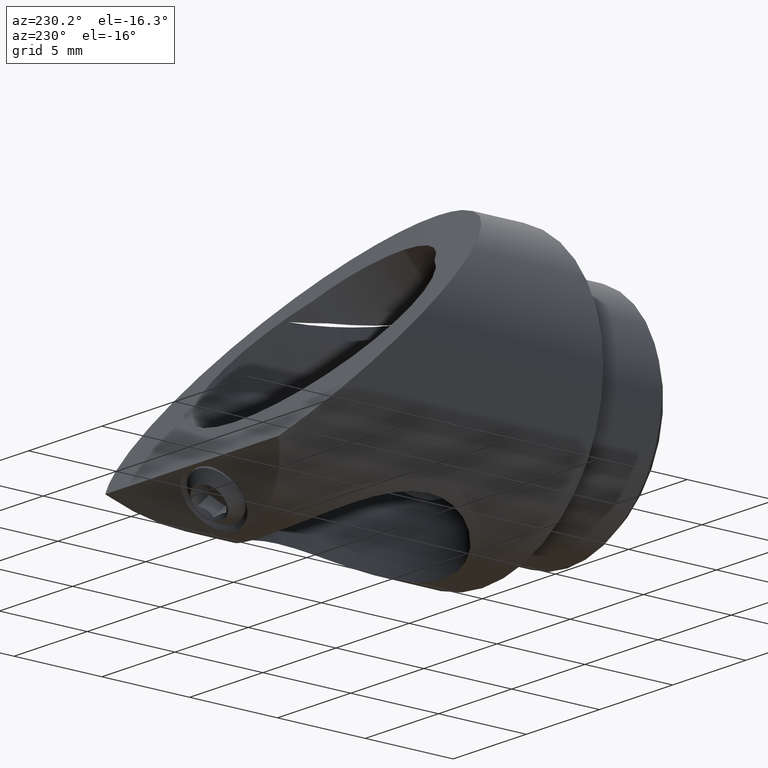
[diagram: clean part render]
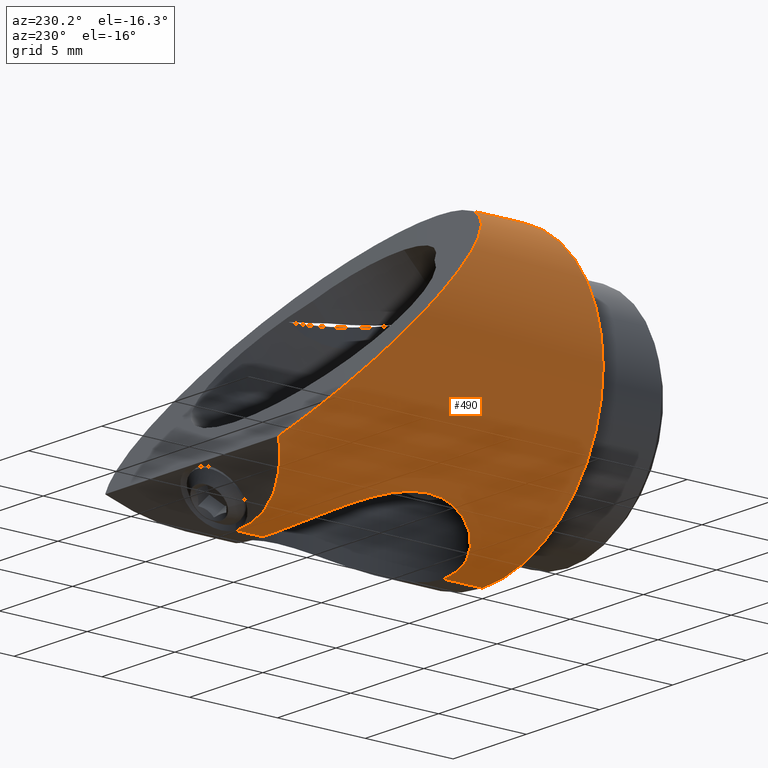
[diagram: same view with one face highlighted and labeled with its STEP entity id]
A machine part, auxiliary view. The second image highlights one B-rep face of the part: STEP entity #490.
In plain terms, the highlighted cylindrical surface (partial cylindrical patch) has radius 8.255 mm, axis along (-0, -1, -0).
Its self-contained STEP definition (entity closure, byte-faithful):
#56 = CARTESIAN_POINT ( 'NONE',  ( -4.607688005399395159, 5.055511432832127561, -6.851265883429170422 ) ) ;
#63 = CARTESIAN_POINT ( 'NONE',  ( 5.688456862632121891E-15, 2.222499999999918874, -8.255000000000050520 ) ) ;
#107 = CARTESIAN_POINT ( 'NONE',  ( -2.613451219519464352, 11.80833277268657788, -7.835806132201303065 ) ) ;
#122 = CARTESIAN_POINT ( 'NONE',  ( 0.000000000000000000, 30.00000000000000000, 0.000000000000000000 ) ) ;
#178 = CARTESIAN_POINT ( 'NONE',  ( -3.413166636286394162, 3.504181741876475353, -7.520768276831066856 ) ) ;
#185 = CARTESIAN_POINT ( 'NONE',  ( -5.107612937613382087, 6.669752681843417186, -6.485738422663894553 ) ) ;
#210 = CARTESIAN_POINT ( 'NONE',  ( -3.411064405648982500, 11.22963272712891758, -7.521712761560991112 ) ) ;
#233 = VERTEX_POINT ( 'NONE', #840 ) ;
#235 = CARTESIAN_POINT ( 'NONE',  ( -4.083941564817017422, 10.50996999270171806, -7.177199685979259058 ) ) ;
#247 = CARTESIAN_POINT ( 'NONE',  ( 0.000000000000000000, 30.00000000000000000, -8.255000000000000782 ) ) ;
#261 = CARTESIAN_POINT ( 'NONE',  ( -5.931774102239412372, 16.53600000000001558, -5.741000000000161307 ) ) ;
#275 = CARTESIAN_POINT ( 'NONE',  ( 5.688456862632121891E-15, 2.222499999999918874, -8.255000000000050520 ) ) ;
#277 = CIRCLE ( 'NONE', #858, 8.255000000000000782 ) ;
#298 = CARTESIAN_POINT ( 'NONE',  ( 0.000000000000000000, 30.00000000000000000, -8.255000000000000782 ) ) ;
#302 = CARTESIAN_POINT ( 'NONE',  ( -2.315092837053867036, 2.760626923448897152, -7.930175362161001829 ) ) ;
#339 = VERTEX_POINT ( 'NONE', #571 ) ;
#343 = CARTESIAN_POINT ( 'NONE',  ( -0.6893307125977805594, 2.257264699664378593, -8.233205143247753099 ) ) ;
#363 = CARTESIAN_POINT ( 'NONE',  ( -5.143500000000001293, 7.710809347538978287, -6.456735456095442416 ) ) ;
#402 =( BOUNDED_CURVE ( )  B_SPLINE_CURVE ( 3, ( #1053, #1581, #802, #534 ),
 .UNSPECIFIED., .F., .F. ) 
 B_SPLINE_CURVE_WITH_KNOTS ( ( 4, 4 ),
 ( 3.943332872215878471, 6.283185307179586232 ),
 .UNSPECIFIED. ) 
 CURVE ( )  GEOMETRIC_REPRESENTATION_ITEM ( )  RATIONAL_B_SPLINE_CURVE ( ( 1.000000000000000000, 0.5934797456959256534, 0.5934797456959256534, 1.000000000000000000 ) ) 
 REPRESENTATION_ITEM ( '' )  );
#433 = VERTEX_POINT ( 'NONE', #1432 ) ;
#434 = CARTESIAN_POINT ( 'NONE',  ( -1.364165436341900906, 2.403756321948335994, -8.143197344316554620 ) ) ;
#463 = VERTEX_POINT ( 'NONE', #908 ) ;
#479 = CARTESIAN_POINT ( 'NONE',  ( -5.143500000000003070, 7.020977924376516910, -6.456735456095442416 ) ) ;
#483 = LINE ( 'NONE', #1013, #995 ) ;
#487 = CARTESIAN_POINT ( 'NONE',  ( -4.450140269535491910, 9.965880305188587585, -6.956078321778690565 ) ) ;
#490 = ADVANCED_FACE ( 'NONE', ( #1299 ), #777, .T. ) ;
#502 = EDGE_CURVE ( 'NONE', #805, #1475, #1225, .T. ) ;
#516 = CARTESIAN_POINT ( 'NONE',  ( -4.354934205719423801, 14.90676152907947838, -7.370238470920710050 ) ) ;
#524 = EDGE_CURVE ( 'NONE', #879, #433, #1448, .T. ) ;
#526 = VECTOR ( 'NONE', #893, 1000.000000000000000 ) ;
#534 = CARTESIAN_POINT ( 'NONE',  ( 1.010945932696140139E-15, 2.540000000000000480, 8.255000000000000782 ) ) ;
#537 = CARTESIAN_POINT ( 'NONE',  ( 1.010945932696140139E-15, 2.540000000000000480, 8.255000000000000782 ) ) ;
#565 = CARTESIAN_POINT ( 'NONE',  ( -4.869752913553363705, 5.676428239152469857, -6.667543739750078302 ) ) ;
#571 = CARTESIAN_POINT ( 'NONE',  ( 1.010945932696140139E-15, 0.000000000000000000, 8.255000000000000782 ) ) ;
#573 = CARTESIAN_POINT ( 'NONE',  ( -1.849665492352053242, 2.563634878676754436, -8.046697480712376560 ) ) ;
#577 = VERTEX_POINT ( 'NONE', #537 ) ;
#611 = CARTESIAN_POINT ( 'NONE',  ( -3.159608716539251017, 11.43801676058217609, -7.631962904562657357 ) ) ;
#612 = ORIENTED_EDGE ( 'NONE', *, *, #1089, .F. ) ;
#690 = DIRECTION ( 'NONE',  ( -0.000000000000000000, -1.000000000000000000, -0.000000000000000000 ) ) ;
#718 = DIRECTION ( 'NONE',  ( 0.000000000000000000, 0.000000000000000000, 1.000000000000000000 ) ) ;
#755 = CARTESIAN_POINT ( 'NONE',  ( -3.873887220869094872, 10.76541407151500174, -7.294142927507111906 ) ) ;
#764 = DIRECTION ( 'NONE',  ( -0.000000000000000000, -1.000000000000000000, -0.000000000000000000 ) ) ;
#777 = CYLINDRICAL_SURFACE ( 'NONE', #1430, 8.255000000000000782 ) ;
#780 = B_SPLINE_CURVE_WITH_KNOTS ( 'NONE', 3,
 ( #1530, #363, #1287, #1662, #1514, #870, #487, #235, #755, #210, #611, #107, #1003, #1404, #1539, #897, #1011, #1261 ),
 .UNSPECIFIED., .F., .F.,
 ( 4, 2, 2, 2, 2, 2, 2, 2, 4 ),
 ( 0.02479707838270260589, 0.02582831465423654493, 0.02685955092577048745, 0.02789078719730442649, 0.02892202346883836553, 0.02995325974037230457, 0.03098449601190624361, 0.03201573228344018612, 0.03304696855497412517 ),
 .UNSPECIFIED. ) ;
#784 = ORIENTED_EDGE ( 'NONE', *, *, #1341, .F. ) ;
#802 = CARTESIAN_POINT ( 'NONE',  ( -8.537846587272609256, 2.540000000000000480, 8.255000000000004334 ) ) ;
#805 = VERTEX_POINT ( 'NONE', #1658 ) ;
#811 = EDGE_CURVE ( 'NONE', #577, #339, #483, .T. ) ;
#826 = CARTESIAN_POINT ( 'NONE',  ( -2.612417552858952607, 2.922945028847887983, -7.836201093754040059 ) ) ;
#835 = CARTESIAN_POINT ( 'NONE',  ( -1.195847029178505716, 2.360479810213385488, -8.169695806658765491 ) ) ;
#840 = CARTESIAN_POINT ( 'NONE',  ( -5.962151190919923481E-17, 12.50950000000000095, -8.255000000000000782 ) ) ;
#843 = ORIENTED_EDGE ( 'NONE', *, *, #524, .T. ) ;
#858 = AXIS2_PLACEMENT_3D ( 'NONE', #1629, #1362, #718 ) ;
#868 = ORIENTED_EDGE ( 'NONE', *, *, #1391, .T. ) ;
#870 = CARTESIAN_POINT ( 'NONE',  ( -4.609554460243104224, 9.672555399637696283, -6.849989968078081581 ) ) ;
#879 = VERTEX_POINT ( 'NONE', #275 ) ;
#893 = DIRECTION ( 'NONE',  ( -0.000000000000000000, -1.000000000000000000, -0.000000000000000000 ) ) ;
#897 = CARTESIAN_POINT ( 'NONE',  ( -0.7014817222056666246, 12.47298340018067542, -8.232115966842179944 ) ) ;
#908 = CARTESIAN_POINT ( 'NONE',  ( -5.143500000000001293, 7.365999999999999659, -6.456735456095439751 ) ) ;
#927 = CARTESIAN_POINT ( 'NONE',  ( -2.267342509279245633, 14.02200000000019386, -8.255000000000000782 ) ) ;
#970 = CARTESIAN_POINT ( 'NONE',  ( -4.970533482665356217, 5.999886115209119630, -6.591381471694453431 ) ) ;
#995 = VECTOR ( 'NONE', #764, 1000.000000000000000 ) ;
#1003 = CARTESIAN_POINT ( 'NONE',  ( -2.314949534177703772, 11.97138576939535248, -7.930185673402472268 ) ) ;
#1011 = CARTESIAN_POINT ( 'NONE',  ( -0.3492483900387300944, 12.50949999999999918, -8.255000000000000782 ) ) ;
#1013 = CARTESIAN_POINT ( 'NONE',  ( 1.010945932696140139E-15, 30.00000000000000000, 8.255000000000000782 ) ) ;
#1053 = CARTESIAN_POINT ( 'NONE',  ( -5.931774102239412372, 16.53600000000001558, -5.741000000000161307 ) ) ;
#1061 = EDGE_LOOP ( 'NONE', ( #1106, #1680, #1487, #868, #612, #784, #843, #1373 ) ) ;
#1087 = CARTESIAN_POINT ( 'NONE',  ( -5.931774102239412372, 16.53600000000001558, -5.741000000000161307 ) ) ;
#1089 = EDGE_CURVE ( 'NONE', #463, #233, #780, .T. ) ;
#1099 = CARTESIAN_POINT ( 'NONE',  ( -3.161096097558282914, 3.295013091501417080, -7.631398594899847510 ) ) ;
#1106 = ORIENTED_EDGE ( 'NONE', *, *, #811, .F. ) ;
#1120 = EDGE_CURVE ( 'NONE', #1475, #577, #402, .T. ) ;
#1129 = CARTESIAN_POINT ( 'NONE',  ( -3.876400917375927513, 3.969404252254641108, -7.292816869263497814 ) ) ;
#1138 = CARTESIAN_POINT ( 'NONE',  ( -4.085751769635632691, 4.224516064800194037, -7.176141795072093821 ) ) ;
#1169 = DIRECTION ( 'NONE',  ( 0.000000000000000000, 0.000000000000000000, -1.000000000000000000 ) ) ;
#1222 = CARTESIAN_POINT ( 'NONE',  ( -0.3470436480964237957, 2.222499999999989928, -8.255000000000004334 ) ) ;
#1225 =( BOUNDED_CURVE ( )  B_SPLINE_CURVE ( 3, ( #1465, #927, #516, #261 ),
 .UNSPECIFIED., .F., .T. ) 
 B_SPLINE_CURVE_WITH_KNOTS ( ( 4, 4 ),
 ( 0.000000000000000000, 0.8017402186260856878 ),
 .UNSPECIFIED. ) 
 CURVE ( )  GEOMETRIC_REPRESENTATION_ITEM ( )  RATIONAL_B_SPLINE_CURVE ( ( 1.000000000000000000, 0.9471478725708104562, 0.9471478725708104562, 1.000000000000000000 ) ) 
 REPRESENTATION_ITEM ( '' )  );
#1261 = CARTESIAN_POINT ( 'NONE',  ( -5.962151190919923481E-17, 12.50950000000000095, -8.255000000000000782 ) ) ;
#1287 = CARTESIAN_POINT ( 'NONE',  ( -5.108683926008340315, 8.055856523614652431, -6.484901407861141109 ) ) ;
#1299 = FACE_OUTER_BOUND ( 'NONE', #1061, .T. ) ;
#1308 = LINE ( 'NONE', #247, #526 ) ;
#1341 = EDGE_CURVE ( 'NONE', #879, #463, #1436, .T. ) ;
#1362 = DIRECTION ( 'NONE',  ( 0.000000000000000000, 1.000000000000000000, 0.000000000000000000 ) ) ;
#1373 = ORIENTED_EDGE ( 'NONE', *, *, #1664, .T. ) ;
#1391 = EDGE_CURVE ( 'NONE', #805, #233, #1308, .T. ) ;
#1404 = CARTESIAN_POINT ( 'NONE',  ( -1.695909886668773403, 12.23349001920269608, -8.085216497826543502 ) ) ;
#1430 = AXIS2_PLACEMENT_3D ( 'NONE', #122, #1526, #1169 ) ;
#1432 = CARTESIAN_POINT ( 'NONE',  ( 0.000000000000000000, 0.000000000000000000, -8.255000000000000782 ) ) ;
#1436 = B_SPLINE_CURVE_WITH_KNOTS ( 'NONE', 3,
 ( #63, #1222, #343, #835, #434, #1476, #573, #302, #826, #1099, #178, #1129, #1138, #1653, #56, #565, #970, #185, #479, #1527 ),
 .UNSPECIFIED., .F., .F.,
 ( 4, 2, 2, 2, 2, 2, 2, 2, 2, 4 ),
 ( 0.01654209848955700765, 0.01757397097620020873, 0.01808990721952180927, 0.01860584346284340634, 0.01963771594948660743, 0.02066958843612980851, 0.02170146092277300612, 0.02273333340941620720, 0.02376520589605940481, 0.02479707838270260589 ),
 .UNSPECIFIED. ) ;
#1448 = LINE ( 'NONE', #298, #1455 ) ;
#1455 = VECTOR ( 'NONE', #690, 1000.000000000000000 ) ;
#1465 = CARTESIAN_POINT ( 'NONE',  ( 0.000000000000000000, 14.02200000000019386, -8.255000000000000782 ) ) ;
#1475 = VERTEX_POINT ( 'NONE', #1087 ) ;
#1476 = CARTESIAN_POINT ( 'NONE',  ( -1.690606594807824603, 2.505273819719333162, -8.081736179051281610 ) ) ;
#1487 = ORIENTED_EDGE ( 'NONE', *, *, #502, .F. ) ;
#1514 = CARTESIAN_POINT ( 'NONE',  ( -4.870161848386636905, 9.054109505945676872, -6.667224194163316575 ) ) ;
#1526 = DIRECTION ( 'NONE',  ( -0.000000000000000000, -1.000000000000000000, -0.000000000000000000 ) ) ;
#1527 = CARTESIAN_POINT ( 'NONE',  ( -5.143500000000001293, 7.365999999999999659, -6.456735456095439751 ) ) ;
#1530 = CARTESIAN_POINT ( 'NONE',  ( -5.143500000000001293, 7.365999999999999659, -6.456735456095439751 ) ) ;
#1539 = CARTESIAN_POINT ( 'NONE',  ( -1.373706233974686608, 12.33452968583751996, -8.146946733646027283 ) ) ;
#1581 = CARTESIAN_POINT ( 'NONE',  ( -11.86948182574436572, 10.40098155357042486, 0.3940184464294918532 ) ) ;
#1629 = CARTESIAN_POINT ( 'NONE',  ( 0.000000000000000000, 0.000000000000000000, 0.000000000000000000 ) ) ;
#1653 = CARTESIAN_POINT ( 'NONE',  ( -4.450333134269828683, 4.766610873259017112, -6.955926507668213965 ) ) ;
#1658 = CARTESIAN_POINT ( 'NONE',  ( 0.000000000000000000, 14.02200000000019386, -8.255000000000000782 ) ) ;
#1662 = CARTESIAN_POINT ( 'NONE',  ( -4.970840562930437301, 8.731758974693224928, -6.591156334321073729 ) ) ;
#1664 = EDGE_CURVE ( 'NONE', #433, #339, #277, .T. ) ;
#1680 = ORIENTED_EDGE ( 'NONE', *, *, #1120, .F. ) ;